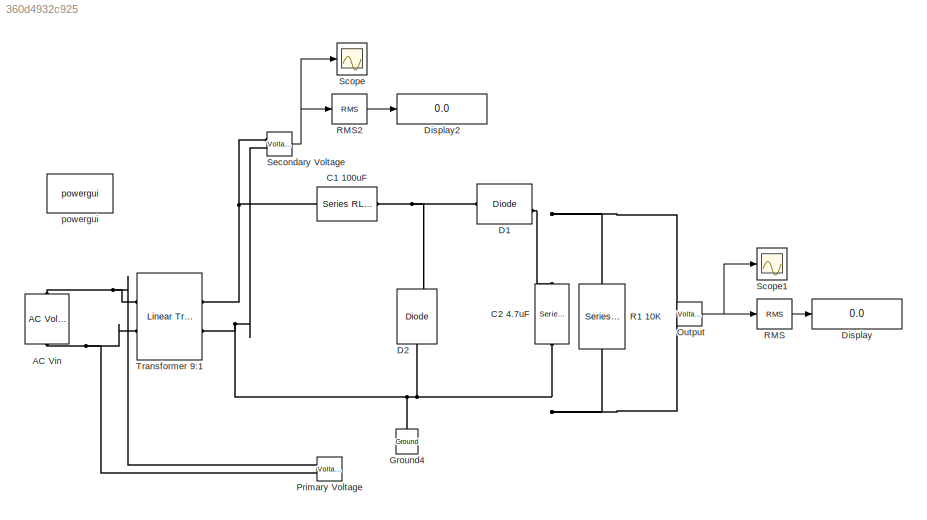
MODEL slx_360d4932c925
KIND model
CONFIG AbsTol = auto
CONFIG FixedStep = auto
CONFIG MaxStep = auto
CONFIG MinStep = auto
CONFIG RelTol = 1e-3
CONFIG SampleTimeConstraint = Unconstrained
CONFIG Solver = ode45
CONFIG SolverMode = Auto
CONFIG SolverName = ode45
CONFIG StartTime = 0.0
CONFIG StopTime = 1.0
BLOCK [Reference] AC Vin  REF=powerlib/Electrical
Sources/AC Voltage Source
  Amplitude = 220*sqrt(2)
  Frequency = 60
  Measurements = None
  Phase = 0
  Ports = [0, 0, 0, 0, 0, 1, 1]
  SampleTime = 0
  SourceBlock = powerlib/Electrical\nSources/AC Voltage Source
  SourceType = AC Voltage Source
BLOCK [Reference] C1 100uF  REF=powerlib/Elements/Series RLC Branch
  BranchType = C
  Capacitance = 100e-6
  Inductance = 0
  InitialCurrent = 0
  InitialVoltage = 0
  LConnTagsString = __new0
  Measurements = None
  Ports = [0, 0, 0, 0, 0, 1, 1]
  RConnTagsString = __new0
  Resistance = 0
  SetiL0 = off
  Setx0 = off
  SourceBlock = powerlib/Elements/Series RLC Branch
  SourceType = Series RLC Branch
BLOCK [Reference] C2  4.7uF  REF=powerlib/Elements/Series RLC Branch
  BranchType = C
  Capacitance = 4.7e-6
  Inductance = 0
  InitialCurrent = 0
  InitialVoltage = 0
  LConnTagsString = __new0
  Measurements = None
  Ports = [0, 0, 0, 0, 0, 1, 1]
  RConnTagsString = __new0
  Resistance = 0
  SetiL0 = off
  Setx0 = off
  SourceBlock = powerlib/Elements/Series RLC Branch
  SourceType = Series RLC Branch
BLOCK [Reference] D1  REF=powerlib/Power
Electronics/Diode
  Cs = 0
  IC = 0
  Lon = 0
  Measurements = on
  Ports = [0, 1, 0, 0, 0, 1, 1]
  Ron = 0.001
  Rs = 0
  SourceBlock = powerlib/Power\nElectronics/Diode
  SourceType = Diode
  UseSnubber = off
  Vf = 0.8
BLOCK [Reference] D2  REF=powerlib/Power
Electronics/Diode
  Cs = 0
  IC = 0
  Lon = 0
  Measurements = on
  Ports = [0, 1, 0, 0, 0, 1, 1]
  Ron = 0.001
  Rs = 0
  SourceBlock = powerlib/Power\nElectronics/Diode
  SourceType = Diode
  UseSnubber = off
  Vf = 0.8
BLOCK [Display] Display
  Decimation = 1
  Ports = [1]
BLOCK [Display] Display2
  Decimation = 1
  Ports = [1]
BLOCK [Reference] Ground4  REF=powerlib/Elements/Ground
  LConnTagsString = a
  Ports = [0, 0, 0, 0, 0, 1]
  SourceBlock = powerlib/Elements/Ground
  SourceType = Ground
BLOCK [Reference] Output  REF=powerlib/Measurements/Voltage Measurement
  OutputType = Complex
  PSBequivalent = 0
  PhasorSimulation = off
  Ports = [0, 1, 0, 0, 0, 2]
  SourceBlock = powerlib/Measurements/Voltage Measurement
  SourceType = Voltage Measurement
  UserDataPersistent = on
BLOCK [Reference] Primary Voltage  REF=powerlib/Measurements/Voltage Measurement
  OutputType = Complex
  PSBequivalent = 0
  PhasorSimulation = off
  Ports = [0, 1, 0, 0, 0, 2]
  SourceBlock = powerlib/Measurements/Voltage Measurement
  SourceType = Voltage Measurement
  UserDataPersistent = on
BLOCK [Reference] R1 10K  REF=powerlib/Elements/Series RLC Branch
  BranchType = R
  Capacitance = 100e-6
  Inductance = 0
  InitialCurrent = 0
  InitialVoltage = 0
  LConnTagsString = __new0
  Measurements = None
  Ports = [0, 0, 0, 0, 0, 1, 1]
  RConnTagsString = __new0
  Resistance = 10000
  SetiL0 = off
  Setx0 = off
  SourceBlock = powerlib/Elements/Series RLC Branch
  SourceType = Series RLC Branch
BLOCK [Reference] RMS  REF=powerlib_meascontrol/Measurements/RMS
  Freq = 60
  Ports = [1, 1]
  RMSInit = 120
  SourceBlock = powerlib_meascontrol/Measurements/RMS
  SourceType = RMS
  TrueRMS = on
  Ts = 0
BLOCK [Reference] RMS2  REF=powerlib_meascontrol/Measurements/RMS
  Freq = 60
  Ports = [1, 1]
  RMSInit = 120
  SourceBlock = powerlib_meascontrol/Measurements/RMS
  SourceType = RMS
  TrueRMS = on
  Ts = 0
BLOCK [Scope] Scope
  Floating = off
  NumInputPorts = 1
  Ports = [1]
BLOCK [Scope] Scope1
  Floating = off
  NumInputPorts = 1
  Ports = [1]
  SaveName = ScopeData1
  YMax = 70
  YMin = 0
  ZoomMode = yonly
BLOCK [Reference] Secondary Voltage  REF=powerlib/Measurements/Voltage Measurement
  OutputType = Complex
  PSBequivalent = 0
  PhasorSimulation = off
  Ports = [0, 1, 0, 0, 0, 2]
  SourceBlock = powerlib/Measurements/Voltage Measurement
  SourceType = Voltage Measurement
  UserDataPersistent = on
BLOCK [Reference] Transformer 9:1  REF=powerlib/Elements/Linear Transformer
  DataType = on
  Measurements = None
  NominalPower = [ 250e6 60 ]
  Ports = [0, 0, 0, 0, 0, 2, 2]
  RmLm = [inf inf]
  SourceBlock = powerlib/Elements/Linear Transformer
  SourceType = Linear Transformer
  ThreeWindings = off
  UNITS = SI
  winding1 = [220 0 0]
  winding2 = [220/9 0 0]
  winding3 = [12 0 0]
BLOCK [Reference] powergui  REF=powerlib/powergui
  DisableRonSwitches = off
  DisableSnubberDevices = off
  DisableVfSwitches = off
  DisplayEquations = off
  DisplayStyle = 1
  EnableUseOfTLC = off
  ErrMax = 1e-4
  Frange = [0:2:500]
  FreqAxis = off
  FunctionMessages = off
  HookPort = off
  Interpol = on
  Iterations = 50
  MaxFrequency = 1000
  Pbase = 100e6
  Ports = []
  Priority = 1
  ResistiveCurrentMeasurement = off
  RestoreLinks = warning
  RmsSteady = 1
  SPID = off
  SampleTime = 10e-6
  ShowGrid = off
  SolverType = Tustin/Backward Euler (TBE)
  SourceBlock = powerlib/powergui
  SourceType = PSB option menu block
  StartTime = 0.0
  SwTol = 0
  Ts = 100
  UnitsV = kV
  UnitsW = MW
  UserDataPersistent = on
  Xlog = on
  Ylog = off
  ZoomFFT = off
  buscounter = 0
  cycles = 1
  display = off
  echomessages = off
  frequency = 60
  frequencyindice = 60
  frequencyindicesteady = 1
  fundamental = 60
  methode = off
  save = off
  structure = 0
  variable = ZData
  x0status = blocks
NET Output:1 -> RMS:1, Scope1:1
LINE RMS2:1 -> Display2:1
LINE RMS:1 -> Display:1
NET Secondary Voltage:1 -> RMS2:1, Scope:1
PNET net1: AC Vin:LConn1 -- Primary Voltage:LConn2 -- Transformer 9:1:LConn2
PNET net2: AC Vin:RConn1 -- Primary Voltage:LConn1 -- Transformer 9:1:LConn1
PNET net3: C1 100uF:LConn1 -- D1:LConn1 -- D2:RConn1
PNET net4: C1 100uF:RConn1 -- Secondary Voltage:LConn1 -- Transformer 9:1:RConn1
PNET net5: C2  4.7uF:LConn1 -- D1:RConn1 -- Output:LConn1 -- R1 10K:RConn1
PNET net6: C2  4.7uF:RConn1 -- D2:LConn1 -- Ground4:LConn1 -- Output:LConn2 -- R1 10K:LConn1 -- Secondary Voltage:LConn2 -- Transformer 9:1:RConn2
note: NET lines group one-source signal fan-out (src -> all destinations, sorted); 1:1 wires keep LINE; PNET lines group multi-terminal physical nets as a canonical sorted terminal list (undirected conserving connections); 2-terminal nets keep the pairwise PLINE form
